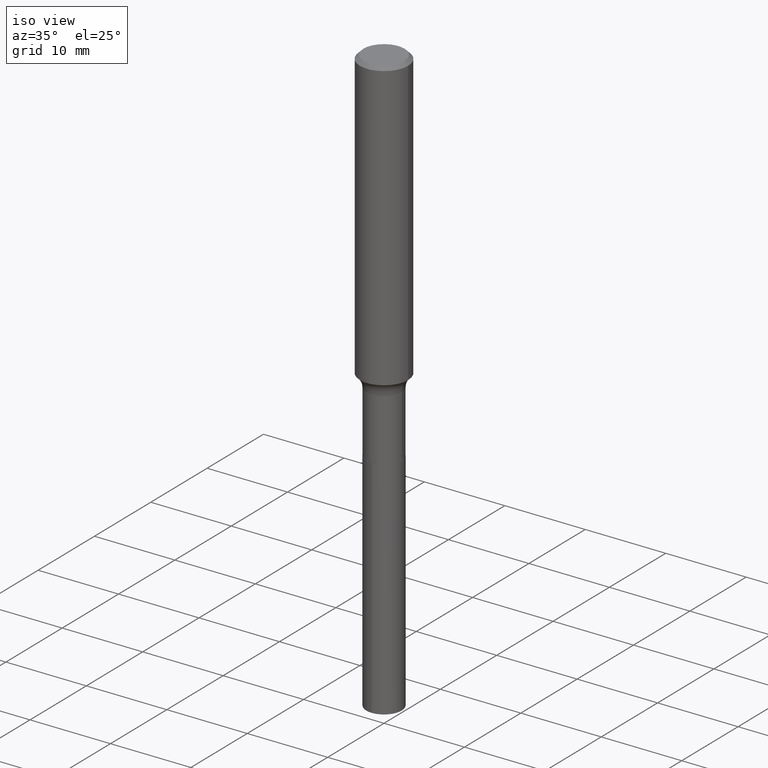
[diagram: clean part render]
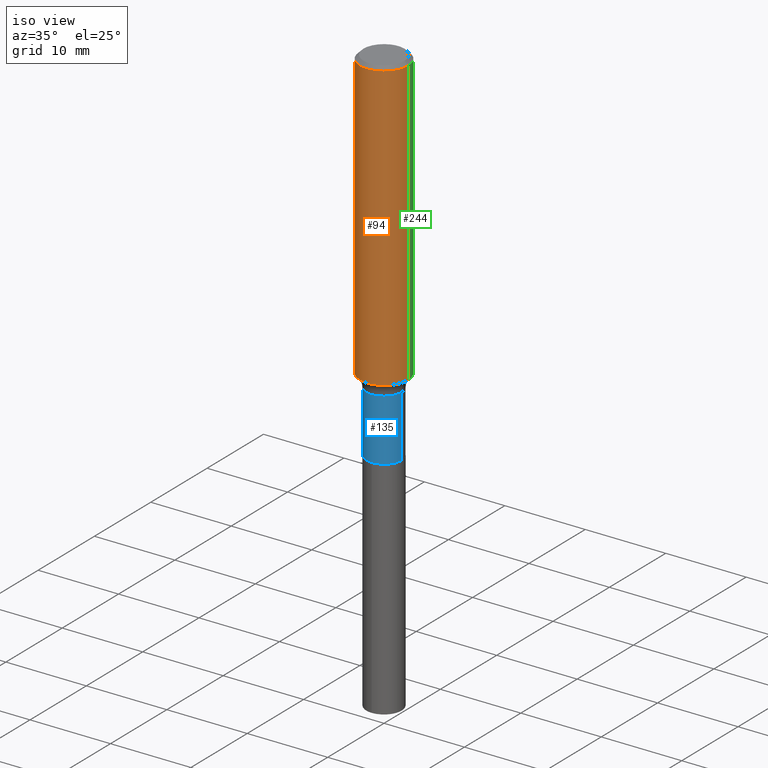
[diagram: same view with three faces highlighted in distinct colors, each labeled with its STEP entity id]
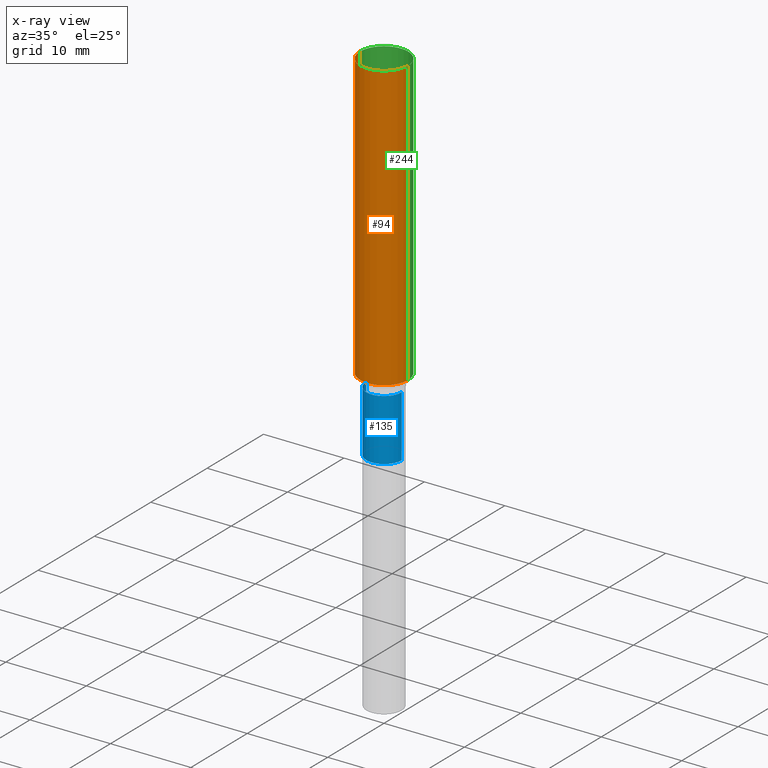
[diagram: x-ray of the same camera — body ghosted, the three highlighted faces saturated]
A machine part, iso view with three faces highlighted in distinct colors.
The next image is the same camera in x-ray (body ghosted, the three faces saturated) — at least one of them is partly hidden behind the body in this view.
Their STEP definitions:

[orange] entity #94 — the highlighted cylindrical surface (edge-blend (fillet) strip) has radius 2.9997 mm, axis along (-0, 0, 1).
#11 = CARTESIAN_POINT ( 'NONE',  ( -0.1180999999999999966, -1.648688559709055710E-15, -0.01771500000000011607 ) ) ;
#16 = DIRECTION ( 'NONE',  ( 1.000000000000000000, -6.982962677686266711E-15, 0.000000000000000000 ) ) ;
#25 = VERTEX_POINT ( 'NONE', #50 ) ;
#38 = CARTESIAN_POINT ( 'NONE',  ( 3.441694406790502504E-29, -4.913827469365863983E-15, -1.407376122764555149 ) ) ;
#39 = VERTEX_POINT ( 'NONE', #11 ) ;
#45 = LINE ( 'NONE', #196, #387 ) ;
#50 = CARTESIAN_POINT ( 'NONE',  ( 0.1181000000000001909, -5.738515361600613034E-15, -1.407376122764555149 ) ) ;
#76 = ORIENTED_EDGE ( 'NONE', *, *, #250, .F. ) ;
#94 = ADVANCED_FACE ( 'NONE', ( #443 ), #136, .T. ) ;
#98 = DIRECTION ( 'NONE',  ( -2.445468806185136877E-29, 3.491481338843145188E-15, 1.000000000000000000 ) ) ;
#106 = CARTESIAN_POINT ( 'NONE',  ( 4.332147990156998495E-31, -6.185159191760672860E-17, -0.01771500000000011607 ) ) ;
#109 = AXIS2_PLACEMENT_3D ( 'NONE', #38, #268, #261 ) ;
#110 = CARTESIAN_POINT ( 'NONE',  ( -0.1181000000000001909, -4.074676498433184208E-15, -1.407376122764555149 ) ) ;
#133 = CARTESIAN_POINT ( 'NONE',  ( 0.1180999999999999966, -8.865394841523548556E-16, -0.01771500000000011607 ) ) ;
#134 = DIRECTION ( 'NONE',  ( -2.445468806185136597E-29, 3.491481338843145583E-15, 1.000000000000000000 ) ) ;
#136 = CYLINDRICAL_SURFACE ( 'NONE', #146, 0.1181000000000000799 ) ;
#138 = CARTESIAN_POINT ( 'NONE',  ( 0.000000000000000000, 0.000000000000000000, 0.000000000000000000 ) ) ;
#146 = AXIS2_PLACEMENT_3D ( 'NONE', #138, #134, #272 ) ;
#156 = CARTESIAN_POINT ( 'NONE',  ( 0.1181000000000000799, -8.246878922347486570E-16, 5.758764772215004644E-30 ) ) ;
#158 = EDGE_LOOP ( 'NONE', ( #224, #337, #383, #76 ) ) ;
#196 = CARTESIAN_POINT ( 'NONE',  ( -0.1181000000000000799, 8.391509709326788873E-16, -5.809262341591047988E-30 ) ) ;
#200 = AXIS2_PLACEMENT_3D ( 'NONE', #106, #204, #16 ) ;
#201 = DIRECTION ( 'NONE',  ( -2.445468806185136877E-29, 3.491481338843145188E-15, 1.000000000000000000 ) ) ;
#204 = DIRECTION ( 'NONE',  ( -2.445468806185136597E-29, 3.491481338843145583E-15, 1.000000000000000000 ) ) ;
#224 = ORIENTED_EDGE ( 'NONE', *, *, #225, .F. ) ;
#225 = EDGE_CURVE ( 'NONE', #332, #39, #45, .T. ) ;
#250 = EDGE_CURVE ( 'NONE', #39, #285, #451, .T. ) ;
#261 = DIRECTION ( 'NONE',  ( 1.000000000000000000, -6.982962677686263555E-15, 0.000000000000000000 ) ) ;
#268 = DIRECTION ( 'NONE',  ( -2.445468806185136597E-29, 3.491481338843145583E-15, 1.000000000000000000 ) ) ;
#272 = DIRECTION ( 'NONE',  ( 1.000000000000000000, -6.982962677686266711E-15, 4.876176775795936353E-29 ) ) ;
#285 = VERTEX_POINT ( 'NONE', #133 ) ;
#315 = CIRCLE ( 'NONE', #109, 0.1181000000000001632 ) ;
#325 = VECTOR ( 'NONE', #201, 39.37007874015748143 ) ;
#332 = VERTEX_POINT ( 'NONE', #110 ) ;
#337 = ORIENTED_EDGE ( 'NONE', *, *, #465, .T. ) ;
#383 = ORIENTED_EDGE ( 'NONE', *, *, #411, .T. ) ;
#384 = LINE ( 'NONE', #156, #325 ) ;
#387 = VECTOR ( 'NONE', #98, 39.37007874015748143 ) ;
#411 = EDGE_CURVE ( 'NONE', #25, #285, #384, .T. ) ;
#443 = FACE_OUTER_BOUND ( 'NONE', #158, .T. ) ;
#451 = CIRCLE ( 'NONE', #200, 0.1180999999999999966 ) ;
#465 = EDGE_CURVE ( 'NONE', #332, #25, #315, .T. ) ;

[blue] entity #135 — the highlighted cylindrical surface (edge-blend (fillet) strip) has radius 2.1996 mm, axis along (-0, 0, 1).
#5 = EDGE_LOOP ( 'NONE', ( #470, #190, #327, #266 ) ) ;
#40 = CARTESIAN_POINT ( 'NONE',  ( 0.08659999999999996867, -6.047245678876305299E-16, 4.222769087839279152E-30 ) ) ;
#53 = LINE ( 'NONE', #163, #73 ) ;
#73 = VECTOR ( 'NONE', #91, 39.37007874015748143 ) ;
#91 = DIRECTION ( 'NONE',  ( -2.445468806185136877E-29, 3.491481338843145188E-15, 1.000000000000000000 ) ) ;
#101 = DIRECTION ( 'NONE',  ( -2.445468806185136597E-29, 3.491481338843145583E-15, 1.000000000000000000 ) ) ;
#120 = VERTEX_POINT ( 'NONE', #276 ) ;
#132 = AXIS2_PLACEMENT_3D ( 'NONE', #246, #367, #369 ) ;
#135 = ADVANCED_FACE ( 'NONE', ( #440 ), #203, .T. ) ;
#152 = AXIS2_PLACEMENT_3D ( 'NONE', #483, #101, #239 ) ;
#162 = CARTESIAN_POINT ( 'NONE',  ( 0.08659999999999998255, -6.787439722711072510E-15, -1.770799999999999930 ) ) ;
#163 = CARTESIAN_POINT ( 'NONE',  ( -0.08659999999999996867, 6.153300091682465383E-16, -4.259797788160746705E-30 ) ) ;
#190 = ORIENTED_EDGE ( 'NONE', *, *, #371, .T. ) ;
#203 = CYLINDRICAL_SURFACE ( 'NONE', #262, 0.08659999999999996867 ) ;
#215 = EDGE_CURVE ( 'NONE', #120, #417, #53, .T. ) ;
#222 = CIRCLE ( 'NONE', #152, 0.08659999999999995479 ) ;
#229 = CIRCLE ( 'NONE', #132, 0.08659999999999998255 ) ;
#233 = CARTESIAN_POINT ( 'NONE',  ( 0.08659999999999995479, -5.737202135987053365E-15, -1.469999999999999529 ) ) ;
#234 = CARTESIAN_POINT ( 'NONE',  ( 0.000000000000000000, 0.000000000000000000, 0.000000000000000000 ) ) ;
#239 = DIRECTION ( 'NONE',  ( 1.000000000000000000, -6.982962677686272233E-15, 0.000000000000000000 ) ) ;
#240 = VERTEX_POINT ( 'NONE', #233 ) ;
#246 = CARTESIAN_POINT ( 'NONE',  ( 4.330436161992639608E-29, -6.182715154823442375E-15, -1.770799999999999930 ) ) ;
#262 = AXIS2_PLACEMENT_3D ( 'NONE', #234, #349, #393 ) ;
#266 = ORIENTED_EDGE ( 'NONE', *, *, #356, .F. ) ;
#276 = CARTESIAN_POINT ( 'NONE',  ( -0.08659999999999998255, -5.042266352293185968E-15, -1.770799999999999930 ) ) ;
#295 = DIRECTION ( 'NONE',  ( -2.445468806185136877E-29, 3.491481338843145188E-15, 1.000000000000000000 ) ) ;
#300 = LINE ( 'NONE', #40, #436 ) ;
#327 = ORIENTED_EDGE ( 'NONE', *, *, #420, .T. ) ;
#348 = CARTESIAN_POINT ( 'NONE',  ( -0.08659999999999995479, -5.042266352293185968E-15, -1.469999999999999529 ) ) ;
#349 = DIRECTION ( 'NONE',  ( -2.445468806185136597E-29, 3.491481338843145583E-15, 1.000000000000000000 ) ) ;
#356 = EDGE_CURVE ( 'NONE', #417, #240, #222, .T. ) ;
#367 = DIRECTION ( 'NONE',  ( -2.445468806185136597E-29, 3.491481338843145583E-15, 1.000000000000000000 ) ) ;
#369 = DIRECTION ( 'NONE',  ( 1.000000000000000000, -6.982962677686269866E-15, 0.000000000000000000 ) ) ;
#371 = EDGE_CURVE ( 'NONE', #120, #418, #229, .T. ) ;
#393 = DIRECTION ( 'NONE',  ( 1.000000000000000000, -6.982962677686267499E-15, 4.876176775795936353E-29 ) ) ;
#417 = VERTEX_POINT ( 'NONE', #348 ) ;
#418 = VERTEX_POINT ( 'NONE', #162 ) ;
#420 = EDGE_CURVE ( 'NONE', #418, #240, #300, .T. ) ;
#436 = VECTOR ( 'NONE', #295, 39.37007874015748143 ) ;
#440 = FACE_OUTER_BOUND ( 'NONE', #5, .T. ) ;
#470 = ORIENTED_EDGE ( 'NONE', *, *, #215, .F. ) ;
#483 = CARTESIAN_POINT ( 'NONE',  ( 3.594839145092149699E-29, -5.132477568099422441E-15, -1.469999999999999529 ) ) ;

[green] entity #244 — the highlighted cylindrical surface (edge-blend (fillet) strip) has radius 2.9997 mm, axis along (-0, 0, 1).
#3 = CIRCLE ( 'NONE', #191, 0.1180999999999999966 ) ;
#11 = CARTESIAN_POINT ( 'NONE',  ( -0.1180999999999999966, -1.648688559709055710E-15, -0.01771500000000011607 ) ) ;
#25 = VERTEX_POINT ( 'NONE', #50 ) ;
#34 = EDGE_LOOP ( 'NONE', ( #336, #157, #66, #114 ) ) ;
#39 = VERTEX_POINT ( 'NONE', #11 ) ;
#45 = LINE ( 'NONE', #196, #387 ) ;
#48 = CIRCLE ( 'NONE', #59, 0.1181000000000001632 ) ;
#50 = CARTESIAN_POINT ( 'NONE',  ( 0.1181000000000001909, -5.738515361600613034E-15, -1.407376122764555149 ) ) ;
#56 = DIRECTION ( 'NONE',  ( 1.000000000000000000, -6.982962677686266711E-15, 4.876176775795936353E-29 ) ) ;
#59 = AXIS2_PLACEMENT_3D ( 'NONE', #460, #259, #340 ) ;
#61 = DIRECTION ( 'NONE',  ( -2.445468806185136597E-29, 3.491481338843145583E-15, 1.000000000000000000 ) ) ;
#66 = ORIENTED_EDGE ( 'NONE', *, *, #481, .F. ) ;
#98 = DIRECTION ( 'NONE',  ( -2.445468806185136877E-29, 3.491481338843145188E-15, 1.000000000000000000 ) ) ;
#110 = CARTESIAN_POINT ( 'NONE',  ( -0.1181000000000001909, -4.074676498433184208E-15, -1.407376122764555149 ) ) ;
#114 = ORIENTED_EDGE ( 'NONE', *, *, #411, .F. ) ;
#115 = AXIS2_PLACEMENT_3D ( 'NONE', #397, #61, #56 ) ;
#133 = CARTESIAN_POINT ( 'NONE',  ( 0.1180999999999999966, -8.865394841523548556E-16, -0.01771500000000011607 ) ) ;
#156 = CARTESIAN_POINT ( 'NONE',  ( 0.1181000000000000799, -8.246878922347486570E-16, 5.758764772215004644E-30 ) ) ;
#157 = ORIENTED_EDGE ( 'NONE', *, *, #225, .T. ) ;
#160 = DIRECTION ( 'NONE',  ( -2.445468806185136597E-29, 3.491481338843145583E-15, 1.000000000000000000 ) ) ;
#191 = AXIS2_PLACEMENT_3D ( 'NONE', #466, #160, #193 ) ;
#193 = DIRECTION ( 'NONE',  ( 1.000000000000000000, -6.982962677686266711E-15, 0.000000000000000000 ) ) ;
#196 = CARTESIAN_POINT ( 'NONE',  ( -0.1181000000000000799, 8.391509709326788873E-16, -5.809262341591047988E-30 ) ) ;
#201 = DIRECTION ( 'NONE',  ( -2.445468806185136877E-29, 3.491481338843145188E-15, 1.000000000000000000 ) ) ;
#225 = EDGE_CURVE ( 'NONE', #332, #39, #45, .T. ) ;
#244 = ADVANCED_FACE ( 'NONE', ( #399 ), #392, .T. ) ;
#259 = DIRECTION ( 'NONE',  ( -2.445468806185136597E-29, 3.491481338843145583E-15, 1.000000000000000000 ) ) ;
#285 = VERTEX_POINT ( 'NONE', #133 ) ;
#325 = VECTOR ( 'NONE', #201, 39.37007874015748143 ) ;
#332 = VERTEX_POINT ( 'NONE', #110 ) ;
#336 = ORIENTED_EDGE ( 'NONE', *, *, #391, .T. ) ;
#340 = DIRECTION ( 'NONE',  ( 1.000000000000000000, -6.982962677686263555E-15, 0.000000000000000000 ) ) ;
#384 = LINE ( 'NONE', #156, #325 ) ;
#387 = VECTOR ( 'NONE', #98, 39.37007874015748143 ) ;
#391 = EDGE_CURVE ( 'NONE', #25, #332, #48, .T. ) ;
#392 = CYLINDRICAL_SURFACE ( 'NONE', #115, 0.1181000000000000799 ) ;
#397 = CARTESIAN_POINT ( 'NONE',  ( 0.000000000000000000, 0.000000000000000000, 0.000000000000000000 ) ) ;
#399 = FACE_OUTER_BOUND ( 'NONE', #34, .T. ) ;
#411 = EDGE_CURVE ( 'NONE', #25, #285, #384, .T. ) ;
#460 = CARTESIAN_POINT ( 'NONE',  ( 3.441694406790502504E-29, -4.913827469365863983E-15, -1.407376122764555149 ) ) ;
#466 = CARTESIAN_POINT ( 'NONE',  ( 4.332147990156998495E-31, -6.185159191760672860E-17, -0.01771500000000011607 ) ) ;
#481 = EDGE_CURVE ( 'NONE', #285, #39, #3, .T. ) ;